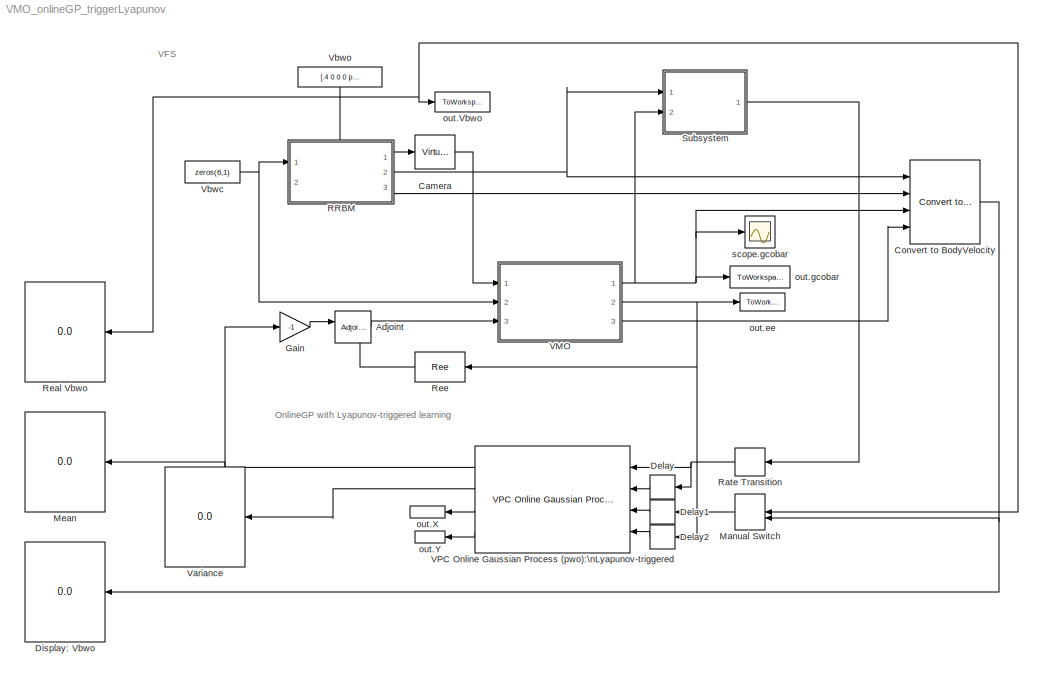
MODEL VMO_onlineGP_triggerLyapunov
KIND model
BLOCK [Reference] Adjoint  REF=simlib_vpc_basic/Adjoint
  NameLocation = top
  Ports = [2, 1]
  RTWMemSecDataConstants = Inherit from model
  RTWMemSecDataInternal = Inherit from model
  RTWMemSecDataParameters = Inherit from model
  RTWMemSecFuncExecute = Inherit from model
  RTWMemSecFuncInitTerm = Inherit from model
  SID = 60
  SourceBlock = simlib_vpc_basic/Adjoint
  SourceProductName = VPC Library
  SourceType = Adjoint Matrix [V1]
  adjointtype = orientation
BLOCK [Reference] Camera  REF=simlib_vpc_basic/Virtual Camera
  NameLocation = top
  Ports = [1, 1]
  RTWMemSecDataConstants = Inherit from model
  RTWMemSecDataInternal = Inherit from model
  RTWMemSecDataParameters = Inherit from model
  RTWMemSecFuncExecute = Inherit from model
  RTWMemSecFuncInitTerm = Inherit from model
  SID = 44
  SourceBlock = simlib_vpc_basic/Virtual Camera
  SourceProductName = VPC Library
  SourceType = Virtual Camera model [V1]
  camtype = Pinhole
  lambda = lambda
  po = po
BLOCK [Reference] Convert to BodyVelocity  REF=simlib_vpc_coremath/Convert to BodyVelocity
  Ports = [4, 1]
  RTWMemSecDataConstants = Inherit from model
  RTWMemSecDataInternal = Inherit from model
  RTWMemSecDataParameters = Inherit from model
  RTWMemSecFuncExecute = Inherit from model
  RTWMemSecFuncInitTerm = Inherit from model
  SID = 103
  SourceBlock = simlib_vpc_coremath/Convert to BodyVelocity
  SourceProductName = VPC Library
  SourceType = Convert to Body Velocity [V1]
BLOCK [Delay] Delay
  DelayLength = 1
  InitialCondition = zeros(3,1)
  InputPortMap = u0
  NameLocation = top
  Ports = [1, 1]
  SID = 120
BLOCK [Delay] Delay1
  DelayLength = 1
  InitialCondition = zeros(6,1)
  InputPortMap = u0
  NameLocation = top
  Ports = [1, 1]
  SID = 121
BLOCK [Delay] Delay2
  DelayLength = 1
  InitialCondition = zeros(6,1)
  InputPortMap = u0
  NameLocation = top
  Ports = [1, 1]
  SID = 122
BLOCK [Display] Display: Vbwo
  Decimation = 1
  Ports = [1]
  SID = 109
BLOCK [Gain] Gain
  Gain = -1
  SID = 61
BLOCK [ManualSwitch] Manual Switch
  SID = 125
BLOCK [Display] Mean
  Decimation = 1
  Ports = [1]
  SID = 90
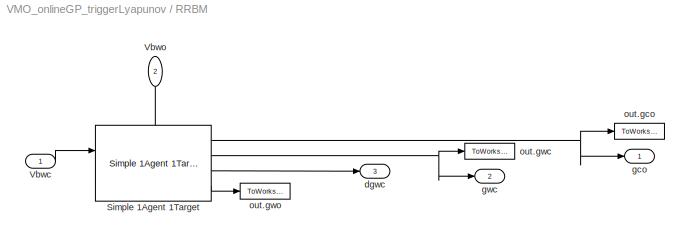
BLOCK [SubSystem] RRBM
  PortSchema = {\"entries\":[{\"content\":{\"sides\":[{\"content\":{\"connectorIds\":[\"In1\"]},\"type\":\"ConnectorPlacement.EquallySpacedRectSide\",\"uuid\":\"ce1006a6-ff18-4db7-ad69-3a60144a672f\"},{\"content\":{\"connectorIds\":[\"Out1\",\"Out2\",\"Out3\"],\"side\":\"RIGHT\"},\"type\":\"ConnectorPlacement.EquallySpacedRectSide\",\"uuid\":\"9f6b7cf2-eb23-4db0-862a-f9244538bf77\"},{\"content\":{\"connectorIds\...<+495ch>
  Ports = [2, 3]
  RequestExecContextInheritance = off
  SID = 8
BLOCK [Reference] RRBM/Simple 1Agent 1Target  REF=simlib_vpc_basic/Simple 1Agent 1Target
  Ports = [2, 4]
  RTWMemSecDataConstants = Inherit from model
  RTWMemSecDataInternal = Inherit from model
  RTWMemSecDataParameters = Inherit from model
  RTWMemSecFuncExecute = Inherit from model
  RTWMemSecFuncInitTerm = Inherit from model
  SID = 20
  SourceBlock = simlib_vpc_basic/Simple 1Agent 1Target
  SourceProductName = VPC Library
  SourceType = Simple 1Agent 1 Target block [V1]
  gwc0 = mergepose(rotx(-90),[0; -5; 0])
  gwo0 = mergepose(rotx(-90),[0.3; 0.1; 0.1])
  projectionAgent = on
  projectionTarget = on
  showdgwc = on
  showdgwo = off
  showgwc = on
  showgwo = on
BLOCK [Inport] RRBM/Vbwc
  SID = 10
BLOCK [Inport] RRBM/Vbwo
  NameLocation = left
  Port = 2
  SID = 9
BLOCK [Outport] RRBM/dgwc
  NameLocation = right
  Port = 3
  SID = 104
BLOCK [Outport] RRBM/gco
  NameLocation = right
  SID = 11
BLOCK [Outport] RRBM/gwc
  NameLocation = right
  Port = 2
  SID = 59
BLOCK [ToWorkspace] RRBM/out.gco
  FixptAsFi = on
  MaxDataPoints = inf
  NameLocation = right
  Ports = [1]
  SID = 69
  SampleTime = -1
  SaveFormat = Structure With Time
  VariableName = gco
BLOCK [ToWorkspace] RRBM/out.gwc
  FixptAsFi = on
  MaxDataPoints = inf
  NameLocation = right
  Ports = [1]
  SID = 33
  SampleTime = -1
  SaveFormat = Structure With Time
  VariableName = gwc
BLOCK [ToWorkspace] RRBM/out.gwo
  FixptAsFi = on
  MaxDataPoints = inf
  NameLocation = right
  Ports = [1]
  SID = 34
  SampleTime = -1
  SaveFormat = Structure With Time
  VariableName = gwo
BLOCK [RateTransition] Rate Transition
  NameLocation = top
  SID = 123
BLOCK [Display] Real Vbwo
  Decimation = 1
  Ports = [1]
  SID = 111
BLOCK [Reference] Ree  REF=simlib_vpc_coremath/Ree
  NameLocation = top
  Ports = [1, 1]
  RTWMemSecDataConstants = Inherit from model
  RTWMemSecDataInternal = Inherit from model
  RTWMemSecDataParameters = Inherit from model
  RTWMemSecFuncExecute = Inherit from model
  RTWMemSecFuncInitTerm = Inherit from model
  SID = 65
  SourceBlock = simlib_vpc_coremath/Ree
  SourceProductName = VPC Library
  SourceType = Rotation Estimation Error [V1]
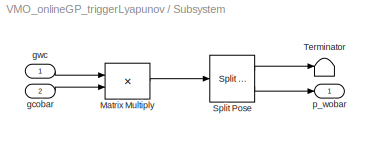
BLOCK [SubSystem] Subsystem
  Ports = [2, 1]
  RequestExecContextInheritance = off
  SID = 70
BLOCK [Product] Subsystem/Matrix Multiply
  Multiplication = Matrix(*)
  Ports = [2, 1]
  SID = 66
BLOCK [Reference] Subsystem/Split Pose  REF=simlib_vpc_coremath/Split Pose
  Ports = [1, 2]
  RTWMemSecDataConstants = Inherit from model
  RTWMemSecDataInternal = Inherit from model
  RTWMemSecDataParameters = Inherit from model
  RTWMemSecFuncExecute = Inherit from model
  RTWMemSecFuncInitTerm = Inherit from model
  SID = 115
  SourceBlock = simlib_vpc_coremath/Split Pose
  SourceProductName = VPC Library
  SourceType = Split pose [V1]
BLOCK [Terminator] Subsystem/Terminator
  NameLocation = right
  SID = 116
BLOCK [Inport] Subsystem/gcobar
  NameLocation = left
  Port = 2
  SID = 72
BLOCK [Inport] Subsystem/gwc
  NameLocation = left
  SID = 71
BLOCK [Outport] Subsystem/p_wobar
  NameLocation = right
  SID = 73
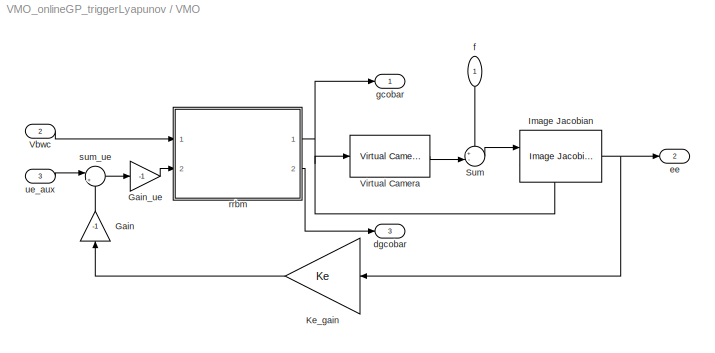
BLOCK [SubSystem] VMO
  MinAlgLoopOccurrences = on
  Ports = [3, 3]
  RTWSystemCode = Reusable function
  RequestExecContextInheritance = off
  SID = 43
BLOCK [Gain] VMO/Gain
  Gain = -1
  NameLocation = right
  SID = 43:206
BLOCK [Gain] VMO/Gain_ue
  Gain = -1
  SID = 43:246
BLOCK [Reference] VMO/Image Jacobian  REF=simlib_vpc_basic/Image Jacobian
  NameLocation = top
  Ports = [2, 1]
  RTWMemSecDataConstants = Inherit from model
  RTWMemSecDataInternal = Inherit from model
  RTWMemSecDataParameters = Inherit from model
  RTWMemSecFuncExecute = Inherit from model
  RTWMemSecFuncInitTerm = Inherit from model
  SID = 43:147
  SourceBlock = simlib_vpc_basic/Image Jacobian
  SourceProductName = VPC Library
  SourceType = Image Jacobian [V1]
  lambda = lambda
  po = fo
BLOCK [Gain] VMO/Ke_gain
  Gain = Ke
  Multiplication = Matrix(K*u) (u vector)
  SID = 43:263
BLOCK [Sum] VMO/Sum
  Inputs = +-|
  Ports = [2, 1]
  SID = 43:150
BLOCK [Inport] VMO/Vbwc
  Port = 2
  SID = 43:144
BLOCK [Reference] VMO/Virtual Camera  REF=simlib_vpc_basic/Virtual Camera
  Ports = [1, 1]
  RTWMemSecDataConstants = Inherit from model
  RTWMemSecDataInternal = Inherit from model
  RTWMemSecDataParameters = Inherit from model
  RTWMemSecFuncExecute = Inherit from model
  RTWMemSecFuncInitTerm = Inherit from model
  SID = 43:151
  SourceBlock = simlib_vpc_basic/Virtual Camera
  SourceProductName = VPC Library
  SourceType = Virtual Camera model [V1]
  camtype = Pinhole
  lambda = lambda
  po = fo
BLOCK [Outport] VMO/dgcobar
  Port = 3
  SID = 43:276
BLOCK [Outport] VMO/ee
  Port = 2
  SID = 43:275
BLOCK [Inport] VMO/f
  NameLocation = left
  SID = 43:143
BLOCK [Outport] VMO/gcobar
  SID = 43:153
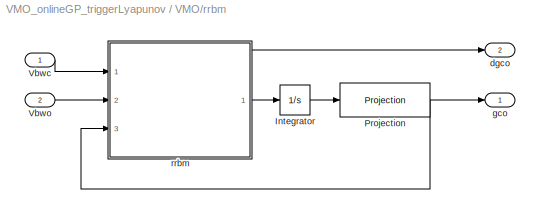
BLOCK [SubSystem] VMO/rrbm
  MinAlgLoopOccurrences = on
  Ports = [2, 2]
  RTWSystemCode = Reusable function
  RequestExecContextInheritance = off
  SID = 43:149
BLOCK [Integrator] VMO/rrbm/Integrator
  InitialCondition = gco0
  Ports = [1, 1]
  SID = 43:149:78
BLOCK [Reference] VMO/rrbm/Projection  REF=simlib_vpc_basic/Projection
  Ports = [1, 1]
  RTWMemSecDataConstants = Inherit from model
  RTWMemSecDataInternal = Inherit from model
  RTWMemSecDataParameters = Inherit from model
  RTWMemSecFuncExecute = Inherit from model
  RTWMemSecFuncInitTerm = Inherit from model
  SID = 43:149:82
  SourceBlock = simlib_vpc_basic/Projection
  SourceProductName = VPC Library
  SourceType = Rotation Projection [V1]
  inputtype = pose
  projectiontype = averaging
BLOCK [Inport] VMO/rrbm/Vbwc
  SID = 43:149:47
BLOCK [Inport] VMO/rrbm/Vbwo
  Port = 2
  SID = 43:149:49
BLOCK [Outport] VMO/rrbm/dgco
  Port = 2
  SID = 43:149:89
BLOCK [Outport] VMO/rrbm/gco
  SID = 43:149:48
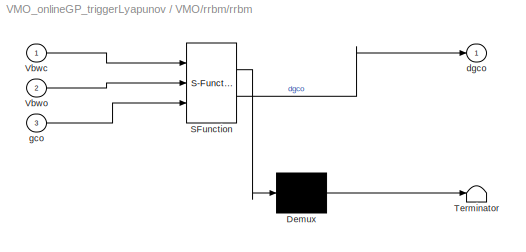
BLOCK [SubSystem] VMO/rrbm/rrbm
  ErrorFcn = Stateflow.Translate.translate
  PermitHierarchicalResolution = ExplicitOnly
  Ports = [3, 1]
  RequestExecContextInheritance = off
  SFBlockType = MATLAB Function
  SID = 43:149:77
  TreatAsAtomicUnit = on
BLOCK [Demux] VMO/rrbm/rrbm/ Demux 
  Outputs = 1
  Ports = [1, 1]
  SID = 43:149:77::28
BLOCK [S-Function] VMO/rrbm/rrbm/ SFunction 
  EnableBusSupport = on
  FunctionName = sf_sfun
  PortCounts = [3 2]
  Ports = [3, 2]
  SFcnIsStateOwnerBlock = off
  SFunctionDeploymentMode = off
  SID = 43:149:77::27
  Tag = Stateflow S-Function 7
BLOCK [Terminator] VMO/rrbm/rrbm/ Terminator 
  SID = 43:149:77::29
BLOCK [Inport] VMO/rrbm/rrbm/Vbwc
  SID = 43:149:77::22
BLOCK [Inport] VMO/rrbm/rrbm/Vbwo
  Port = 2
  SID = 43:149:77::1
BLOCK [Outport] VMO/rrbm/rrbm/dgco
  SID = 43:149:77::5
BLOCK [Inport] VMO/rrbm/rrbm/gco
  Port = 3
  SID = 43:149:77::23
BLOCK [Sum] VMO/sum_ue
  Inputs = |++
  Ports = [2, 1]
  SID = 43:274
BLOCK [Inport] VMO/ue_aux
  Port = 3
  SID = 43:273
BLOCK [Reference] VPC Online Gaussian Process (pwo):\nLyapunov-triggered  REF=simlib_vpc_gp/VPC Online Gaussian Process (pwo):\nLyapunov-triggered
  M = 2
  Ports = [4, 4]
  RTWMemSecDataConstants = Inherit from model
  RTWMemSecDataInternal = Inherit from model
  RTWMemSecDataParameters = Inherit from model
  RTWMemSecFuncExecute = Inherit from model
  RTWMemSecFuncInitTerm = Inherit from model
  SID = 114
  SourceBlock = simlib_vpc_gp/VPC Online Gaussian Process (pwo):\nLyapunov-triggered
  SourceProductName = VPC Library
  SourceType = VPC Online Gaussian Process (Lyapunov-triggered, pwo) [V1]
  Xinit = nan
  Yinit = nan
  beta = 1*ones(1,6)
  forget_type = oldest
  hyp = ones(6,4)
  kernel = Squared Exponential ARD
  lambda = 5
  optimize = off
  sn = 1e-2.*ones(6,1)
  ts = 0.01
BLOCK [Display] Variance
  Decimation = 1
  Ports = [1]
  SID = 99
BLOCK [Constant] Vbwc
  SID = 16
  Value = zeros(6,1)
BLOCK [Constant] Vbwo
  NameLocation = right
  SID = 18
  Value = [.4 0 0 0 pi/6 0]
BLOCK [ToWorkspace] out.Vbwo
  FixptAsFi = on
  MaxDataPoints = inf
  NameLocation = right
  Ports = [1]
  SID = 45
  SampleTime = -1
  SaveFormat = Structure With Time
  VariableName = Vbwo
BLOCK [ToWorkspace] out.X
  FixptAsFi = on
  MaxDataPoints = inf
  NameLocation = left
  Ports = [1]
  SID = 91
  SampleTime = -1
  SaveFormat = Structure With Time
  VariableName = X
BLOCK [ToWorkspace] out.Y
  FixptAsFi = on
  MaxDataPoints = inf
  NameLocation = left
  Ports = [1]
  SID = 98
  SampleTime = -1
  SaveFormat = Structure With Time
  VariableName = Y
BLOCK [ToWorkspace] out.ee
  FixptAsFi = on
  MaxDataPoints = inf
  NameLocation = right
  Ports = [1]
  SID = 36
  SampleTime = -1
  SaveFormat = Structure With Time
  VariableName = ee
BLOCK [ToWorkspace] out.gcobar
  FixptAsFi = on
  MaxDataPoints = inf
  NameLocation = right
  Ports = [1]
  SID = 31
  SampleTime = -1
  SaveFormat = Structure With Time
  VariableName = gcobar
BLOCK [Scope] scope.gcobar
  Floating = off
  NumInputPorts = 1
  Ports = [1]
  SID = 38
  ScopeSpecificationString = Simulink.scopes.TimeScopeBlockCfg('CurrentConfiguration', extmgr.ConfigurationSet(extmgr.Configuration('Core','General UI',true),extmgr.Configuration('Core','Source UI',true),extmgr.Configuration('Sources','WiredSimulink',true),extmgr.Configuration('Visuals','Time Domain',true,'SerializedDisplays',{struct('MinYLimReal','-44571.05179','MaxYLimReal','401135.54571','YLabelReal','','MinYLimMag','   0....<+1871ch>
ANNOTATION (root): \n \n \n \n \n \n \n \n $\\bar{p}_{wo}$ \n \n \n \n
ANNOTATION (root): \n \n \n \n \n \n \n \n Note: \n \n \n If \n $\\dot{\\bar{g}}_{co}$ \n is shown at the output of the VMO, there will be an algebraic loop that Simulink cannot resolve. This is due to how atomic subsystems work. \n \n \n \n \n \n To make this work, the atomic subsystem property of the VMO Library block has been disabled. However, this means that the VMO block in this Simulink file is unique and doe...<+172ch>
ANNOTATION (root): OnlineGP with Lyapunov-triggered learning
ANNOTATION (root): VFS\n
ANNOTATION Subsystem: \n \n \n \n \n \n \n \n $\\bar{g}_{wo}$ \n \n \n \n
LINE Adjoint:1 -> VMO:3
LINE Camera:1 -> VMO:1
NET Convert to BodyVelocity:1 -> Display: Vbwo:1, Manual Switch:2
LINE Delay1:1 -> VPC Online Gaussian Process (pwo):\nLyapunov-triggered:3
LINE Delay2:1 -> VPC Online Gaussian Process (pwo):\nLyapunov-triggered:4
LINE Delay:1 -> VPC Online Gaussian Process (pwo):\nLyapunov-triggered:2
LINE Gain:1 -> Adjoint:1
LINE Manual Switch:1 -> Delay1:1
NET RRBM/Simple 1Agent 1Target:1 -> RRBM/gco:1, RRBM/out.gco:1
NET RRBM/Simple 1Agent 1Target:2 -> RRBM/gwc:1, RRBM/out.gwc:1
LINE RRBM/Simple 1Agent 1Target:3 -> RRBM/dgwc:1
LINE RRBM/Simple 1Agent 1Target:4 -> RRBM/out.gwo:1
LINE RRBM/Vbwc:1 -> RRBM/Simple 1Agent 1Target:1
LINE RRBM/Vbwo:1 -> RRBM/Simple 1Agent 1Target:2
LINE RRBM:1 -> Camera:1
NET RRBM:2 -> Convert to BodyVelocity:1, Subsystem:1
LINE RRBM:3 -> Convert to BodyVelocity:2
NET Rate Transition:1 -> Delay:1, VPC Online Gaussian Process (pwo):\nLyapunov-triggered:1
LINE Ree:1 -> Adjoint:2
LINE Subsystem/Matrix Multiply:1 -> Subsystem/Split Pose:1
LINE Subsystem/Split Pose:1 -> Subsystem/Terminator:1
LINE Subsystem/Split Pose:2 -> Subsystem/p_wobar:1
LINE Subsystem/gcobar:1 -> Subsystem/Matrix Multiply:2
LINE Subsystem/gwc:1 -> Subsystem/Matrix Multiply:1
LINE Subsystem:1 -> Rate Transition:1
LINE VMO/Gain:1 -> VMO/sum_ue:2
LINE VMO/Gain_ue:1 -> VMO/rrbm:2
NET VMO/Image Jacobian:1 -> VMO/Ke_gain:1, VMO/ee:1
LINE VMO/Ke_gain:1 -> VMO/Gain:1
LINE VMO/Sum:1 -> VMO/Image Jacobian:1
LINE VMO/Vbwc:1 -> VMO/rrbm:1
LINE VMO/Virtual Camera:1 -> VMO/Sum:2
LINE VMO/f:1 -> VMO/Sum:1
LINE VMO/rrbm/Integrator:1 -> VMO/rrbm/Projection:1
NET VMO/rrbm/Projection:1 -> VMO/rrbm/gco:1, VMO/rrbm/rrbm:3
LINE VMO/rrbm/Vbwc:1 -> VMO/rrbm/rrbm:1
LINE VMO/rrbm/Vbwo:1 -> VMO/rrbm/rrbm:2
LINE VMO/rrbm/rrbm/ Demux :1 -> VMO/rrbm/rrbm/ Terminator :1
LINE VMO/rrbm/rrbm/ SFunction :1 -> VMO/rrbm/rrbm/ Demux :1
LINE VMO/rrbm/rrbm/ SFunction :2 -> VMO/rrbm/rrbm/dgco:1
LINE VMO/rrbm/rrbm/Vbwc:1 -> VMO/rrbm/rrbm/ SFunction :1
LINE VMO/rrbm/rrbm/Vbwo:1 -> VMO/rrbm/rrbm/ SFunction :2
LINE VMO/rrbm/rrbm/gco:1 -> VMO/rrbm/rrbm/ SFunction :3
NET VMO/rrbm/rrbm:1 -> VMO/rrbm/Integrator:1, VMO/rrbm/dgco:1
NET VMO/rrbm:1 -> VMO/Image Jacobian:2, VMO/Virtual Camera:1, VMO/gcobar:1
LINE VMO/rrbm:2 -> VMO/dgcobar:1
LINE VMO/sum_ue:1 -> VMO/Gain_ue:1
LINE VMO/ue_aux:1 -> VMO/sum_ue:1
NET VMO:1 -> Convert to BodyVelocity:3, Subsystem:2, out.gcobar:1, scope.gcobar:1
NET VMO:2 -> Delay2:1, Ree:1, out.ee:1
LINE VMO:3 -> Convert to BodyVelocity:4
NET VPC Online Gaussian Process (pwo):\nLyapunov-triggered:1 -> Gain:1, Mean:1
LINE VPC Online Gaussian Process (pwo):\nLyapunov-triggered:2 -> Variance:1
LINE VPC Online Gaussian Process (pwo):\nLyapunov-triggered:3 -> out.X:1
LINE VPC Online Gaussian Process (pwo):\nLyapunov-triggered:4 -> out.Y:1
NET Vbwc:1 -> RRBM:1, VMO:2
NET Vbwo:1 -> Manual Switch:1, RRBM:2, Real Vbwo:1, out.Vbwo:1
note: NET lines group one-source signal fan-out (src -> all destinations, sorted); 1:1 wires keep LINE
CHART VMO/rrbm/rrbm states=1 transitions=1
  STATE_LABEL 'eML_blk_kernel()'
